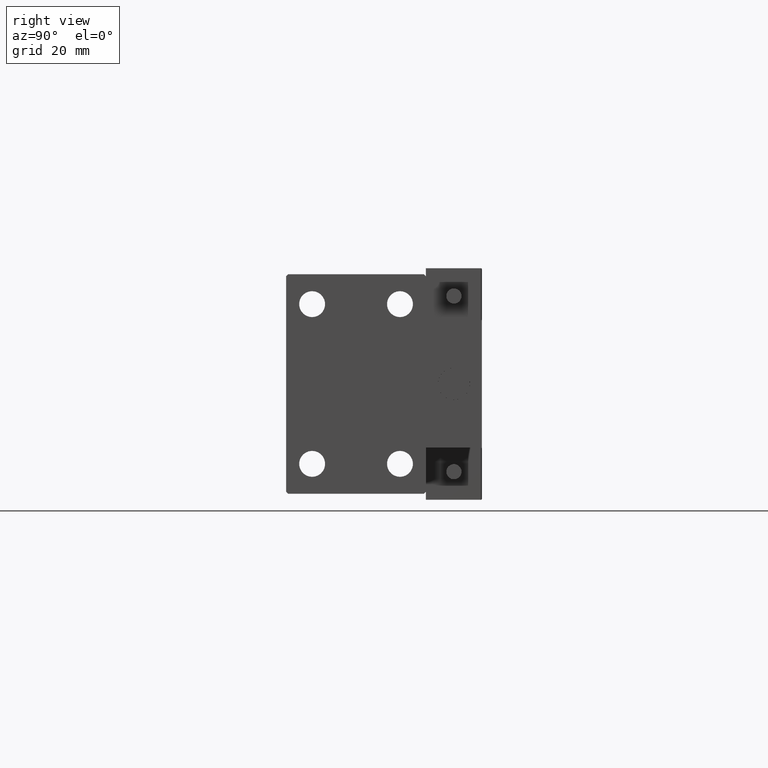
[diagram: clean part render]
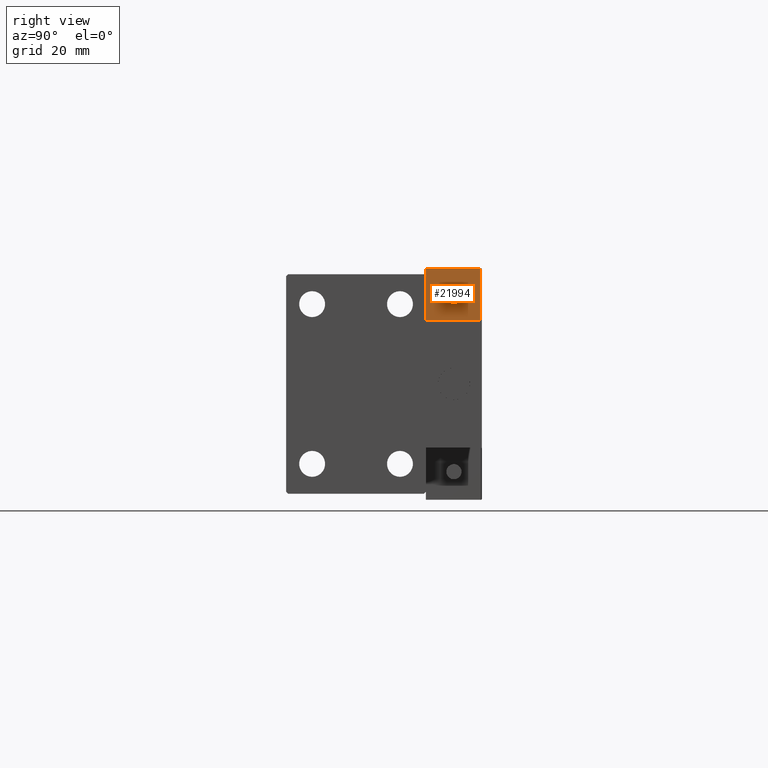
[diagram: same view with one face highlighted and labeled with its STEP entity id]
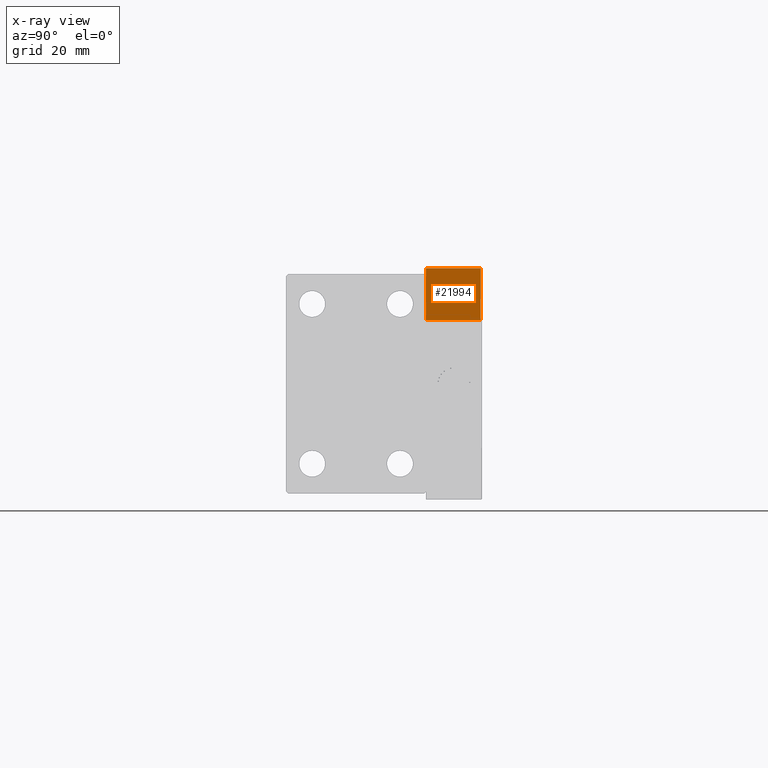
[diagram: x-ray of the same camera — body ghosted, the highlighted face saturated]
A machine part, right view. The second image highlights one B-rep face of the part: STEP entity #21994.
The next image is the same camera in x-ray: the body ghosted, the highlighted face saturated — about 6% of this face is hidden behind the body in this view.
In plain terms, the highlighted planar face has unit normal (-1, 0, 0).
Its self-contained STEP definition (entity closure, byte-faithful):
#523 = CARTESIAN_POINT ( 'NONE',  ( -26.99999999999993605, 20.00000000000002132, 0.000000000000000000 ) ) ;
#765 = CARTESIAN_POINT ( 'NONE',  ( -26.99999999999994671, 7.000000000000005329, 13.70000000000000107 ) ) ;
#1291 = LINE ( 'NONE', #523, #14370 ) ;
#1771 = PLANE ( 'NONE',  #41771 ) ;
#2488 = ORIENTED_EDGE ( 'NONE', *, *, #18802, .F. ) ;
#2507 = EDGE_LOOP ( 'NONE', ( #2488, #46639, #10278, #21181 ) ) ;
#8172 = VERTEX_POINT ( 'NONE', #765 ) ;
#10278 = ORIENTED_EDGE ( 'NONE', *, *, #32928, .T. ) ;
#13130 = DIRECTION ( 'NONE',  ( -8.006416042969869188E-16, -1.000000000000000000, 0.000000000000000000 ) ) ;
#13487 = CARTESIAN_POINT ( 'NONE',  ( -26.99999999999994671, 7.000000000000005329, 14.00000000000000000 ) ) ;
#14370 = VECTOR ( 'NONE', #13130, 1000.000000000000000 ) ;
#14597 = VERTEX_POINT ( 'NONE', #34914 ) ;
#17992 = VECTOR ( 'NONE', #35326, 1000.000000000000000 ) ;
#18802 = EDGE_CURVE ( 'NONE', #8172, #31412, #29931, .T. ) ;
#19613 = CARTESIAN_POINT ( 'NONE',  ( -26.99999999999993605, 20.00000000000002132, 13.70000000000000107 ) ) ;
#20597 = LINE ( 'NONE', #28327, #46161 ) ;
#20806 = DIRECTION ( 'NONE',  ( 8.006416042969869188E-16, 1.000000000000000000, 0.000000000000000000 ) ) ;
#21181 = ORIENTED_EDGE ( 'NONE', *, *, #50634, .T. ) ;
#21994 = ADVANCED_FACE ( 'NONE', ( #37277 ), #1771, .F. ) ;
#23385 = EDGE_CURVE ( 'NONE', #8172, #49850, #23492, .T. ) ;
#23492 = LINE ( 'NONE', #19613, #17992 ) ;
#26861 = VECTOR ( 'NONE', #44846, 1000.000000000000000 ) ;
#27160 = CARTESIAN_POINT ( 'NONE',  ( -26.99999999999993605, 20.00000000000002132, 13.70000000000000107 ) ) ;
#28327 = CARTESIAN_POINT ( 'NONE',  ( -26.99999999999993605, 20.00000000000002132, 14.00000000000000000 ) ) ;
#29931 = LINE ( 'NONE', #13487, #26861 ) ;
#31412 = VERTEX_POINT ( 'NONE', #37104 ) ;
#32928 = EDGE_CURVE ( 'NONE', #49850, #14597, #20597, .T. ) ;
#34914 = CARTESIAN_POINT ( 'NONE',  ( -26.99999999999993605, 20.00000000000002132, 0.000000000000000000 ) ) ;
#35326 = DIRECTION ( 'NONE',  ( 8.006416042969869188E-16, 1.000000000000000000, -0.000000000000000000 ) ) ;
#37104 = CARTESIAN_POINT ( 'NONE',  ( -26.99999999999994671, 7.000000000000005329, 0.000000000000000000 ) ) ;
#37277 = FACE_OUTER_BOUND ( 'NONE', #2507, .T. ) ;
#41771 = AXIS2_PLACEMENT_3D ( 'NONE', #48831, #48080, #20806 ) ;
#44846 = DIRECTION ( 'NONE',  ( -0.000000000000000000, -0.000000000000000000, -1.000000000000000000 ) ) ;
#46161 = VECTOR ( 'NONE', #48375, 1000.000000000000000 ) ;
#46639 = ORIENTED_EDGE ( 'NONE', *, *, #23385, .T. ) ;
#48080 = DIRECTION ( 'NONE',  ( 1.000000000000000000, -8.006416042969869188E-16, 0.000000000000000000 ) ) ;
#48375 = DIRECTION ( 'NONE',  ( -0.000000000000000000, -0.000000000000000000, -1.000000000000000000 ) ) ;
#48831 = CARTESIAN_POINT ( 'NONE',  ( -26.99999999999993605, 20.00000000000002132, 14.00000000000000000 ) ) ;
#49850 = VERTEX_POINT ( 'NONE', #27160 ) ;
#50634 = EDGE_CURVE ( 'NONE', #14597, #31412, #1291, .T. ) ;